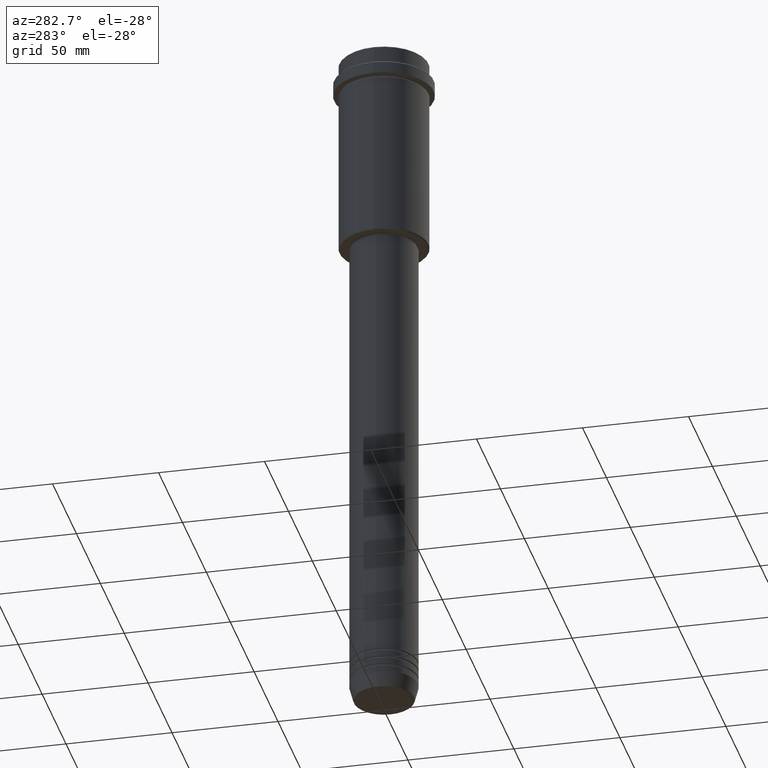
[diagram: clean part render]
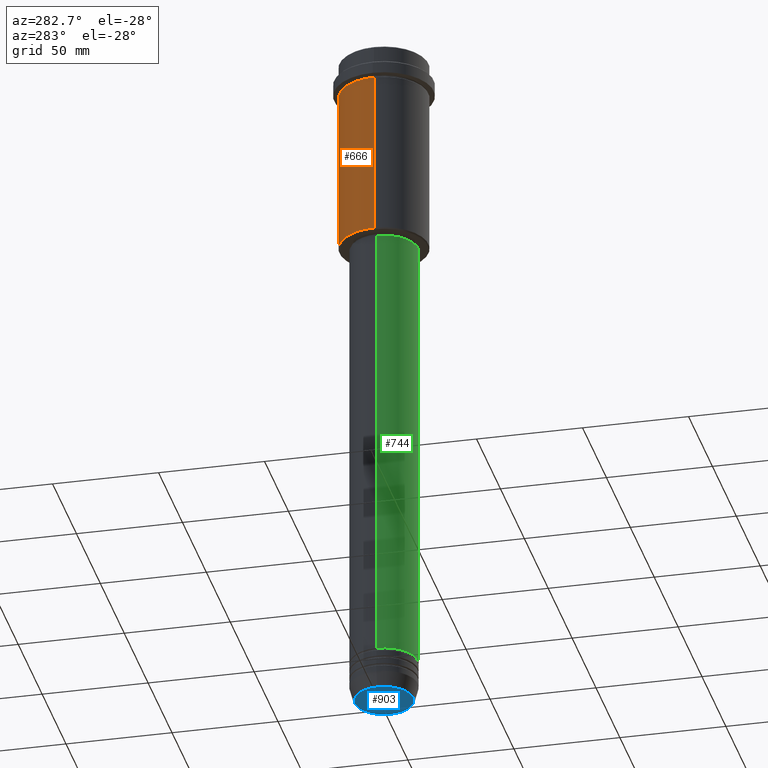
[diagram: same view with three faces highlighted in distinct colors, each labeled with its STEP entity id]
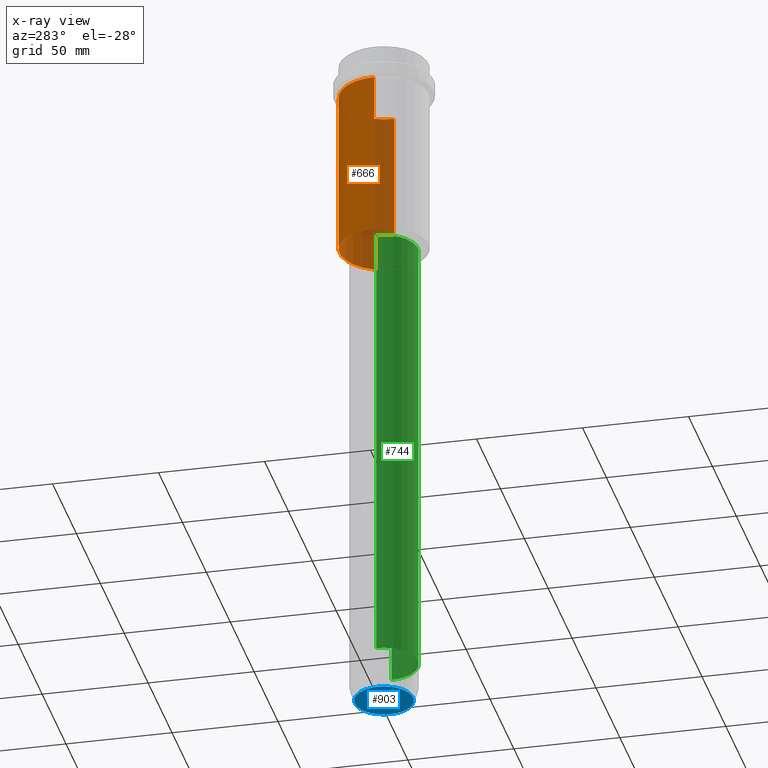
[diagram: x-ray of the same camera — body ghosted, the three highlighted faces saturated]
A machine part, auxiliary view with three faces highlighted in distinct colors.
The next image is the same camera in x-ray (body ghosted, the three faces saturated) — at least one of them is partly hidden behind the body in this view.
Their STEP definitions:

[orange] entity #666 — the highlighted cylindrical surface (partial cylindrical patch) has radius 21 mm, axis along (-0, -0, 1).
#74 = AXIS2_PLACEMENT_3D ( 'NONE', #1207, #1375, #136 ) ;
#92 = ORIENTED_EDGE ( 'NONE', *, *, #933, .F. ) ;
#130 = CARTESIAN_POINT ( 'NONE',  ( 0.000000000000000000, 0.000000000000000000, -94.49999999999995737 ) ) ;
#136 = DIRECTION ( 'NONE',  ( 1.000000000000000000, 0.000000000000000000, 0.000000000000000000 ) ) ;
#218 = EDGE_CURVE ( 'NONE', #737, #1414, #833, .T. ) ;
#292 = CARTESIAN_POINT ( 'NONE',  ( 20.99999999999999645, 0.000000000000000000, -16.00000000000000355 ) ) ;
#311 = CARTESIAN_POINT ( 'NONE',  ( 20.99999999999999645, 0.000000000000000000, -94.49999999999995737 ) ) ;
#328 = EDGE_CURVE ( 'NONE', #1414, #695, #913, .T. ) ;
#348 = VERTEX_POINT ( 'NONE', #292 ) ;
#363 = CIRCLE ( 'NONE', #1291, 20.99999999999999645 ) ;
#379 = DIRECTION ( 'NONE',  ( -0.000000000000000000, -0.000000000000000000, 1.000000000000000000 ) ) ;
#393 = CARTESIAN_POINT ( 'NONE',  ( -20.99999999999999645, 2.571758278209441267E-15, -94.49999999999995737 ) ) ;
#448 = DIRECTION ( 'NONE',  ( -0.000000000000000000, -0.000000000000000000, 1.000000000000000000 ) ) ;
#453 = AXIS2_PLACEMENT_3D ( 'NONE', #130, #448, #877 ) ;
#469 = EDGE_CURVE ( 'NONE', #348, #695, #363, .T. ) ;
#472 = CARTESIAN_POINT ( 'NONE',  ( 20.99999999999999645, 0.000000000000000000, 0.000000000000000000 ) ) ;
#489 = DIRECTION ( 'NONE',  ( 1.000000000000000000, 0.000000000000000000, 0.000000000000000000 ) ) ;
#500 = VECTOR ( 'NONE', #1157, 1000.000000000000000 ) ;
#648 = VECTOR ( 'NONE', #794, 1000.000000000000000 ) ;
#666 = ADVANCED_FACE ( 'NONE', ( #831 ), #1197, .T. ) ;
#688 = CARTESIAN_POINT ( 'NONE',  ( 0.000000000000000000, 0.000000000000000000, -16.00000000000000355 ) ) ;
#695 = VERTEX_POINT ( 'NONE', #740 ) ;
#702 = ORIENTED_EDGE ( 'NONE', *, *, #218, .T. ) ;
#723 = EDGE_LOOP ( 'NONE', ( #702, #1244, #1258, #92 ) ) ;
#737 = VERTEX_POINT ( 'NONE', #311 ) ;
#740 = CARTESIAN_POINT ( 'NONE',  ( -20.99999999999999645, 2.571758278209441267E-15, -16.00000000000000355 ) ) ;
#794 = DIRECTION ( 'NONE',  ( -0.000000000000000000, -0.000000000000000000, 1.000000000000000000 ) ) ;
#831 = FACE_OUTER_BOUND ( 'NONE', #723, .T. ) ;
#833 = CIRCLE ( 'NONE', #453, 20.99999999999999645 ) ;
#877 = DIRECTION ( 'NONE',  ( -1.000000000000000000, 0.000000000000000000, 0.000000000000000000 ) ) ;
#913 = LINE ( 'NONE', #932, #500 ) ;
#932 = CARTESIAN_POINT ( 'NONE',  ( -20.99999999999999645, 2.571758278209441267E-15, 0.000000000000000000 ) ) ;
#933 = EDGE_CURVE ( 'NONE', #737, #348, #1247, .T. ) ;
#1157 = DIRECTION ( 'NONE',  ( -0.000000000000000000, -0.000000000000000000, 1.000000000000000000 ) ) ;
#1197 = CYLINDRICAL_SURFACE ( 'NONE', #74, 20.99999999999999645 ) ;
#1207 = CARTESIAN_POINT ( 'NONE',  ( 0.000000000000000000, 0.000000000000000000, 0.000000000000000000 ) ) ;
#1244 = ORIENTED_EDGE ( 'NONE', *, *, #328, .T. ) ;
#1247 = LINE ( 'NONE', #472, #648 ) ;
#1258 = ORIENTED_EDGE ( 'NONE', *, *, #469, .F. ) ;
#1291 = AXIS2_PLACEMENT_3D ( 'NONE', #688, #379, #489 ) ;
#1375 = DIRECTION ( 'NONE',  ( -0.000000000000000000, -0.000000000000000000, 1.000000000000000000 ) ) ;
#1414 = VERTEX_POINT ( 'NONE', #393 ) ;

[blue] entity #903 — the highlighted planar face has unit normal (0, -0, 1).
#115 = DIRECTION ( 'NONE',  ( 1.000000000000000000, 0.000000000000000000, 0.000000000000000000 ) ) ;
#125 = VERTEX_POINT ( 'NONE', #1367 ) ;
#147 = DIRECTION ( 'NONE',  ( 1.000000000000000000, 0.000000000000000000, 0.000000000000000000 ) ) ;
#187 = DIRECTION ( 'NONE',  ( 0.000000000000000000, 0.000000000000000000, -1.000000000000000000 ) ) ;
#211 = CARTESIAN_POINT ( 'NONE',  ( -13.74069215899265828, 1.712322416342415986E-15, -330.0000000000000000 ) ) ;
#235 = PLANE ( 'NONE',  #1042 ) ;
#346 = DIRECTION ( 'NONE',  ( 0.000000000000000000, 0.000000000000000000, -1.000000000000000000 ) ) ;
#352 = CARTESIAN_POINT ( 'NONE',  ( 0.000000000000000000, 0.000000000000000000, -330.0000000000000000 ) ) ;
#420 = ORIENTED_EDGE ( 'NONE', *, *, #1360, .T. ) ;
#462 = DIRECTION ( 'NONE',  ( 1.000000000000000000, 0.000000000000000000, 0.000000000000000000 ) ) ;
#556 = EDGE_CURVE ( 'NONE', #1119, #125, #637, .T. ) ;
#637 = CIRCLE ( 'NONE', #835, 13.74069215899265828 ) ;
#781 = AXIS2_PLACEMENT_3D ( 'NONE', #352, #346, #462 ) ;
#835 = AXIS2_PLACEMENT_3D ( 'NONE', #893, #187, #115 ) ;
#878 = CARTESIAN_POINT ( 'NONE',  ( 0.000000000000000000, 0.000000000000000000, -330.0000000000000000 ) ) ;
#893 = CARTESIAN_POINT ( 'NONE',  ( 0.000000000000000000, 0.000000000000000000, -330.0000000000000000 ) ) ;
#903 = ADVANCED_FACE ( 'NONE', ( #1016 ), #235, .F. ) ;
#994 = CIRCLE ( 'NONE', #781, 13.74069215899265828 ) ;
#1016 = FACE_OUTER_BOUND ( 'NONE', #1318, .T. ) ;
#1042 = AXIS2_PLACEMENT_3D ( 'NONE', #878, #1339, #147 ) ;
#1053 = ORIENTED_EDGE ( 'NONE', *, *, #556, .T. ) ;
#1119 = VERTEX_POINT ( 'NONE', #211 ) ;
#1318 = EDGE_LOOP ( 'NONE', ( #420, #1053 ) ) ;
#1339 = DIRECTION ( 'NONE',  ( 0.000000000000000000, -0.000000000000000000, 1.000000000000000000 ) ) ;
#1360 = EDGE_CURVE ( 'NONE', #125, #1119, #994, .T. ) ;
#1367 = CARTESIAN_POINT ( 'NONE',  ( 13.74069215899265828, 0.000000000000000000, -330.0000000000000000 ) ) ;

[green] entity #744 — the highlighted cylindrical surface (edge-blend (fillet) strip) has radius 16 mm, axis along (-0, -0, 1).
#46 = EDGE_CURVE ( 'NONE', #100, #665, #1312, .T. ) ;
#100 = VERTEX_POINT ( 'NONE', #756 ) ;
#104 = FACE_OUTER_BOUND ( 'NONE', #1261, .T. ) ;
#174 = LINE ( 'NONE', #474, #1030 ) ;
#175 = VERTEX_POINT ( 'NONE', #497 ) ;
#190 = LINE ( 'NONE', #704, #560 ) ;
#251 = DIRECTION ( 'NONE',  ( -0.000000000000000000, -0.000000000000000000, 1.000000000000000000 ) ) ;
#254 = CARTESIAN_POINT ( 'NONE',  ( 0.000000000000000000, 0.000000000000000000, -310.9999999999998863 ) ) ;
#359 = DIRECTION ( 'NONE',  ( 1.000000000000000000, 0.000000000000000000, 0.000000000000000000 ) ) ;
#416 = CIRCLE ( 'NONE', #1254, 16.00000000000000000 ) ;
#439 = EDGE_CURVE ( 'NONE', #175, #665, #174, .T. ) ;
#474 = CARTESIAN_POINT ( 'NONE',  ( 16.00000000000000000, 0.000000000000000000, 0.000000000000000000 ) ) ;
#497 = CARTESIAN_POINT ( 'NONE',  ( 16.00000000000000000, 0.000000000000000000, -310.9999999999998863 ) ) ;
#535 = DIRECTION ( 'NONE',  ( -0.000000000000000000, -0.000000000000000000, 1.000000000000000000 ) ) ;
#560 = VECTOR ( 'NONE', #1398, 1000.000000000000000 ) ;
#611 = ORIENTED_EDGE ( 'NONE', *, *, #1001, .F. ) ;
#665 = VERTEX_POINT ( 'NONE', #1400 ) ;
#679 = DIRECTION ( 'NONE',  ( 1.000000000000000000, 0.000000000000000000, 0.000000000000000000 ) ) ;
#704 = CARTESIAN_POINT ( 'NONE',  ( -16.00000000000000000, 1.959434878635765131E-15, 0.000000000000000000 ) ) ;
#716 = AXIS2_PLACEMENT_3D ( 'NONE', #1021, #251, #679 ) ;
#728 = ORIENTED_EDGE ( 'NONE', *, *, #911, .T. ) ;
#744 = ADVANCED_FACE ( 'NONE', ( #104 ), #842, .T. ) ;
#756 = CARTESIAN_POINT ( 'NONE',  ( -16.00000000000000355, 1.959434878635765526E-15, -95.99999999999994316 ) ) ;
#796 = VERTEX_POINT ( 'NONE', #1090 ) ;
#804 = AXIS2_PLACEMENT_3D ( 'NONE', #1412, #535, #851 ) ;
#842 = CYLINDRICAL_SURFACE ( 'NONE', #804, 16.00000000000000000 ) ;
#851 = DIRECTION ( 'NONE',  ( 1.000000000000000000, 0.000000000000000000, 0.000000000000000000 ) ) ;
#911 = EDGE_CURVE ( 'NONE', #796, #175, #416, .T. ) ;
#997 = ORIENTED_EDGE ( 'NONE', *, *, #46, .F. ) ;
#1001 = EDGE_CURVE ( 'NONE', #796, #100, #190, .T. ) ;
#1021 = CARTESIAN_POINT ( 'NONE',  ( 0.000000000000000000, 0.000000000000000000, -95.99999999999994316 ) ) ;
#1028 = DIRECTION ( 'NONE',  ( -0.000000000000000000, -0.000000000000000000, 1.000000000000000000 ) ) ;
#1030 = VECTOR ( 'NONE', #1028, 1000.000000000000000 ) ;
#1090 = CARTESIAN_POINT ( 'NONE',  ( -16.00000000000000000, 1.959434878635765131E-15, -310.9999999999998863 ) ) ;
#1140 = ORIENTED_EDGE ( 'NONE', *, *, #439, .T. ) ;
#1223 = DIRECTION ( 'NONE',  ( -0.000000000000000000, -0.000000000000000000, 1.000000000000000000 ) ) ;
#1254 = AXIS2_PLACEMENT_3D ( 'NONE', #254, #1223, #359 ) ;
#1261 = EDGE_LOOP ( 'NONE', ( #611, #728, #1140, #997 ) ) ;
#1312 = CIRCLE ( 'NONE', #716, 16.00000000000000355 ) ;
#1398 = DIRECTION ( 'NONE',  ( -0.000000000000000000, -0.000000000000000000, 1.000000000000000000 ) ) ;
#1400 = CARTESIAN_POINT ( 'NONE',  ( 16.00000000000000355, 0.000000000000000000, -95.99999999999994316 ) ) ;
#1412 = CARTESIAN_POINT ( 'NONE',  ( 0.000000000000000000, 0.000000000000000000, 0.000000000000000000 ) ) ;